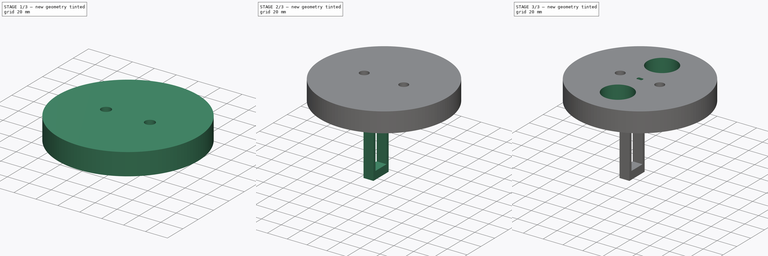
[diagram: build sequence overview — one tinted view per stage of 3, left to right]
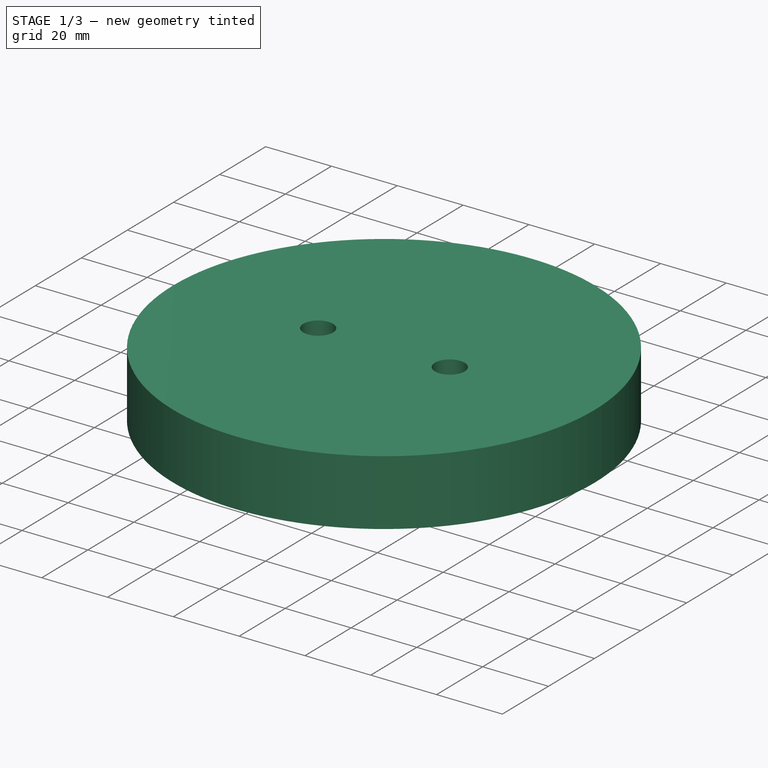
[diagram: stage 1 of 3 — iso view after this stage's code; geometry added in this stage tinted green]
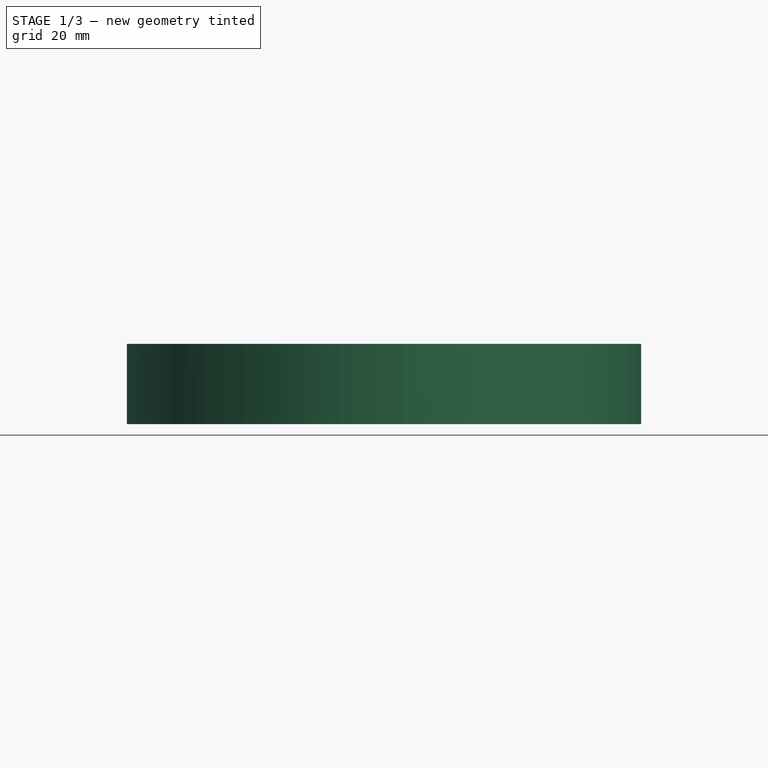
[diagram: stage 1 of 3 — front view after this stage's code; geometry added in this stage tinted green]
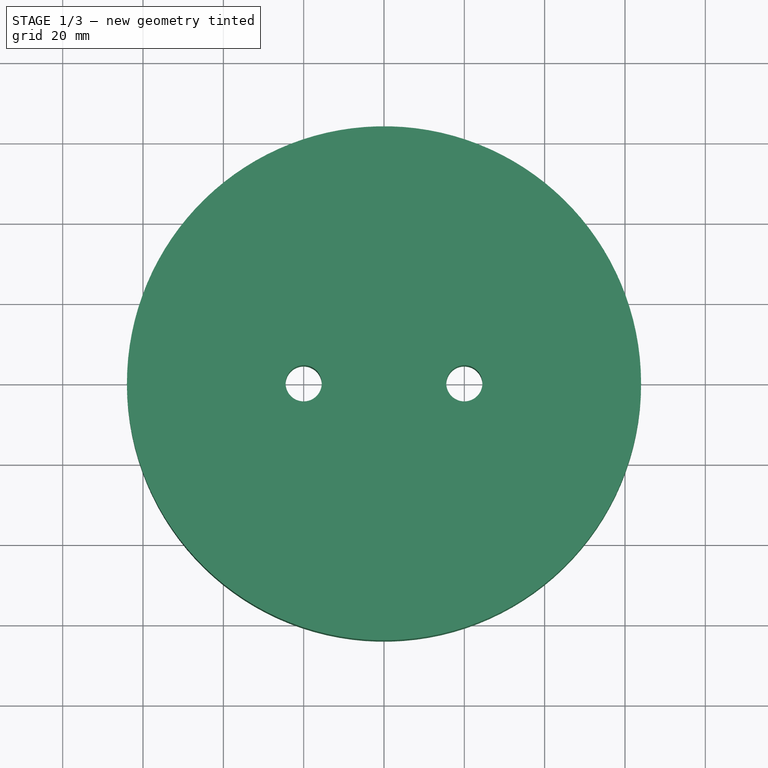
[diagram: stage 1 of 3 — top view after this stage's code; geometry added in this stage tinted green]
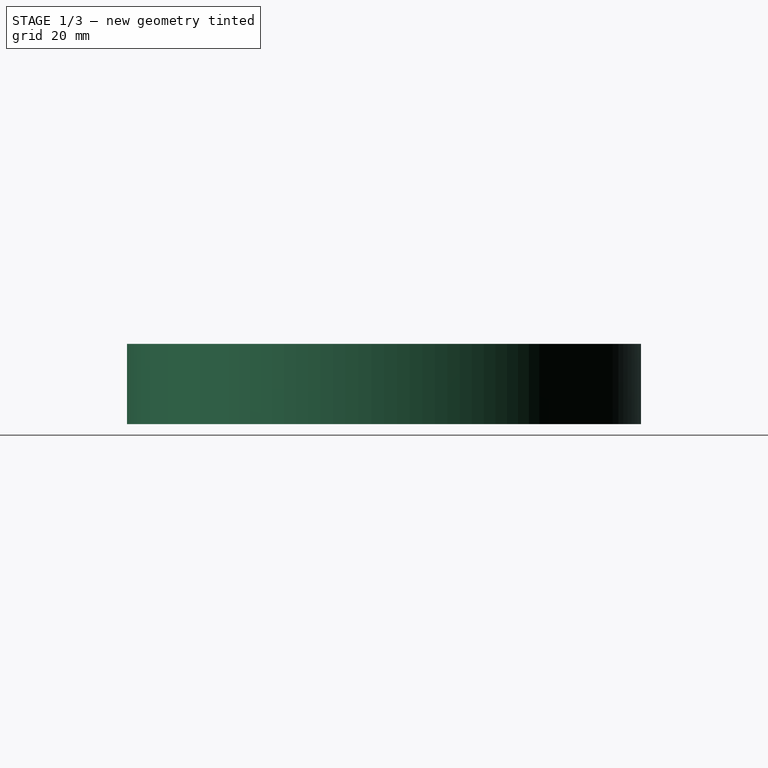
[diagram: stage 1 of 3 — right view after this stage's code; geometry added in this stage tinted green]
FCSTD DOCUMENT  (FreeCAD 0.19R24267 +148 (Git))
Label: Plataforma
License: All rights reserved
LicenseURL: http://en.wikipedia.org/wiki/All_rights_reserved
objects: Sketcher::SketchObject×10, PartDesign::Pocket×6, App::MeasureDistance×5, PartDesign::Pad×2, PartDesign::Body×1
note: 27 computed .brp shape members not serialized (recipe doc carries the construction recipe); baked Part::Feature solids carry a one-line shape summary decoded from their .brp

FEATURE [Sketcher::SketchObject] Sketch004  label="Base"
  FullyConstrained = false
  MapMode = 5
  Support = -> [XY_Plane001]
  sketch-geometry (4):
    g0: GeomPoint X=0 Y=44.0044 Z=0
    g1: GeomPoint X=0 Y=44.0044 Z=0
    g2: GeomPoint X=0 Y=64.0044 Z=0
    g3: Circle CenterX=0 CenterY=0 CenterZ=0 NormalX=0 NormalY=0 NormalZ=1 AngleXU=0 Radius=64.0044
  constraints (6):
    c: PointOnObject(g1,g-2)
    c: Coincident(g0,g1)
    c: PointOnObject(g2,g-2)
    c: Distance(g2,g0) = 20
    c: Coincident(g3,g-1)
    c: PointOnObject(g2,g3)
FEATURE [Sketcher::SketchObject] Sketch005  label="Gancho_izquierdo001"
  FullyConstrained = true
  MapMode = 5
  Support = -> [XY_Plane001]
  sketch-geometry (2):
    g0: GeomPoint X=-20 Y=0 Z=0
    g1: Circle CenterX=-20 CenterY=0 CenterZ=0 NormalX=0 NormalY=0 NormalZ=1 AngleXU=0 Radius=4.5
  constraints (4):
    c: PointOnObject(g0,g-1)
    c: Distance(g-1,g0) = 20
    c: Coincident(g1,g0)
    c: Radius(g1) = 4.5
FEATURE [Sketcher::SketchObject] Sketch006  label="Gancho_derecho001"
  FullyConstrained = true
  MapMode = 5
  Support = -> [XY_Plane001]
  sketch-geometry (2):
    g0: GeomPoint X=20 Y=0 Z=0
    g1: Circle CenterX=20 CenterY=0 CenterZ=0 NormalX=0 NormalY=0 NormalZ=1 AngleXU=0 Radius=4.5
  constraints (4):
    c: PointOnObject(g0,g-1)
    c: Distance(g-1,g0) = 20
    c: Coincident(g1,g0)
    c: Radius(g1) = 4.5
FEATURE [PartDesign::Pad] Pad
  Direction = (1,1,1)
  Length = 20
  Length2 = 100
  Profile = -> Sketch004
  Type = 0
FEATURE [PartDesign::Pocket] Pocket
  BaseFeature = -> Pad
  Length = 20
  Length2 = 100
  Profile = -> Sketch006
  Reversed = true
  Type = 0
FEATURE [PartDesign::Pocket] Pocket001
  BaseFeature = -> Pocket
  Length = 20
  Length2 = 100
  Profile = -> Sketch005
  Reversed = true
  Type = 0
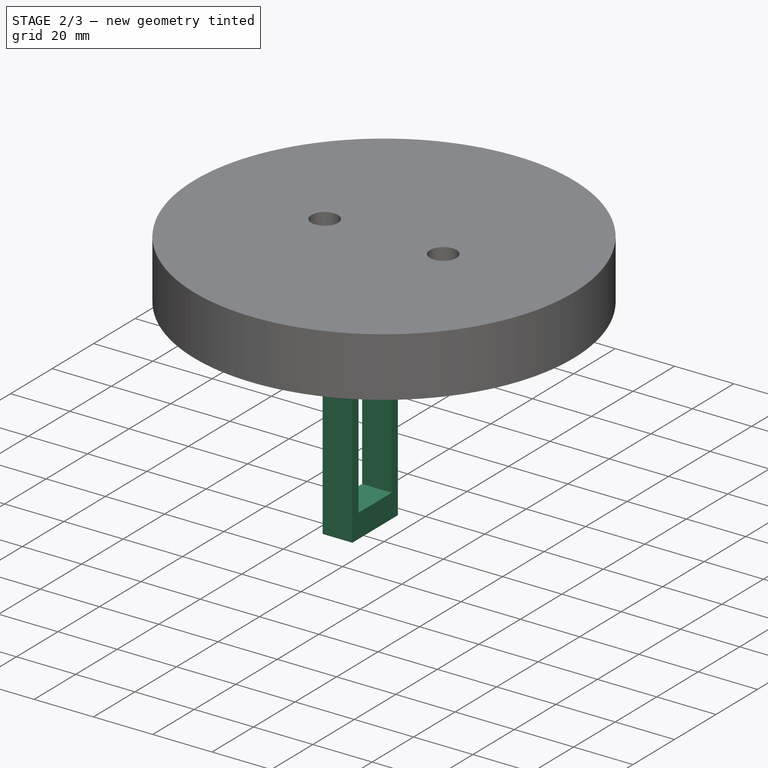
[diagram: stage 2 of 3 — iso view after this stage's code; geometry added in this stage tinted green]
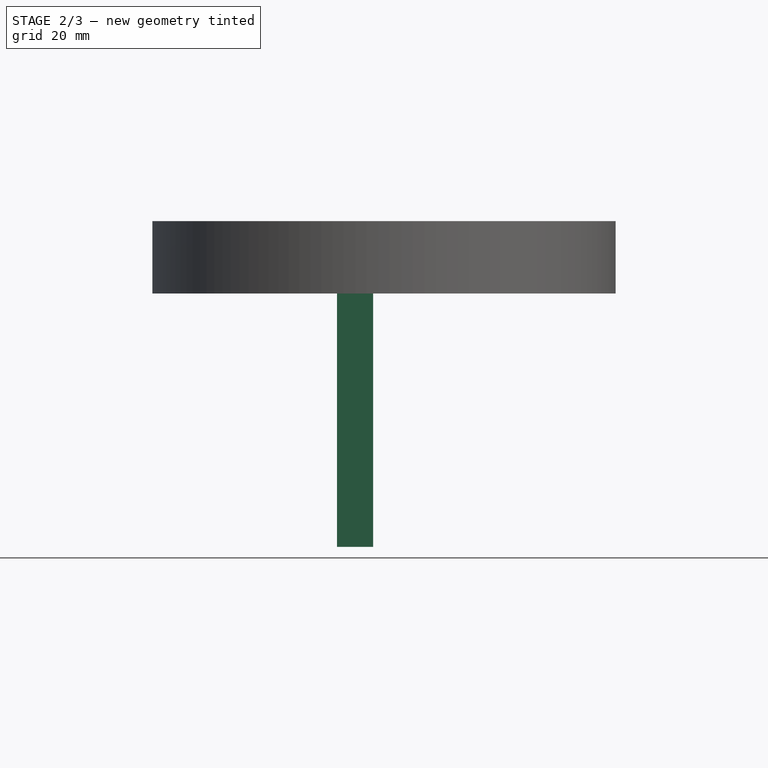
[diagram: stage 2 of 3 — front view after this stage's code; geometry added in this stage tinted green]
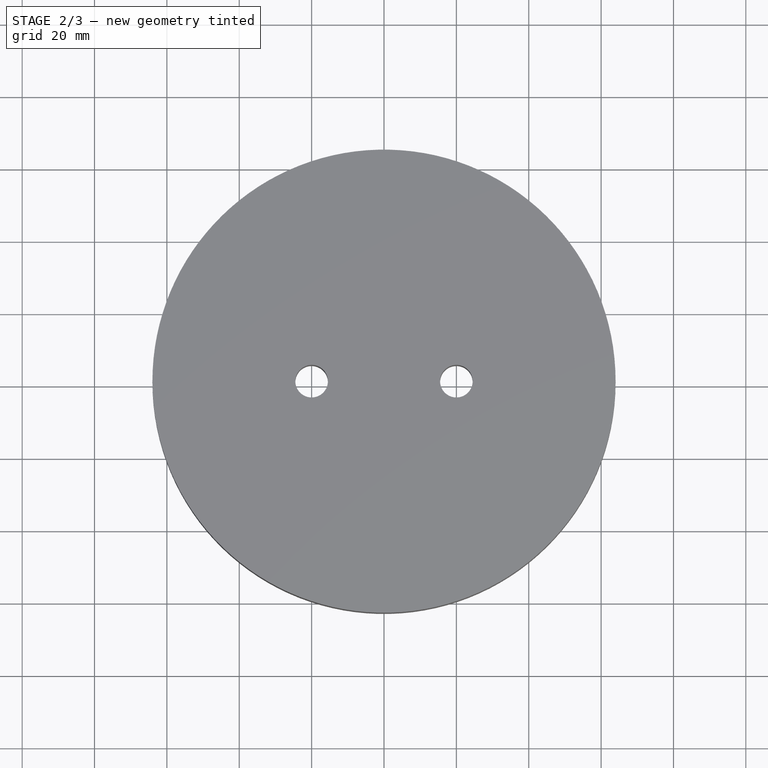
[diagram: stage 2 of 3 — top view after this stage's code; geometry added in this stage tinted green]
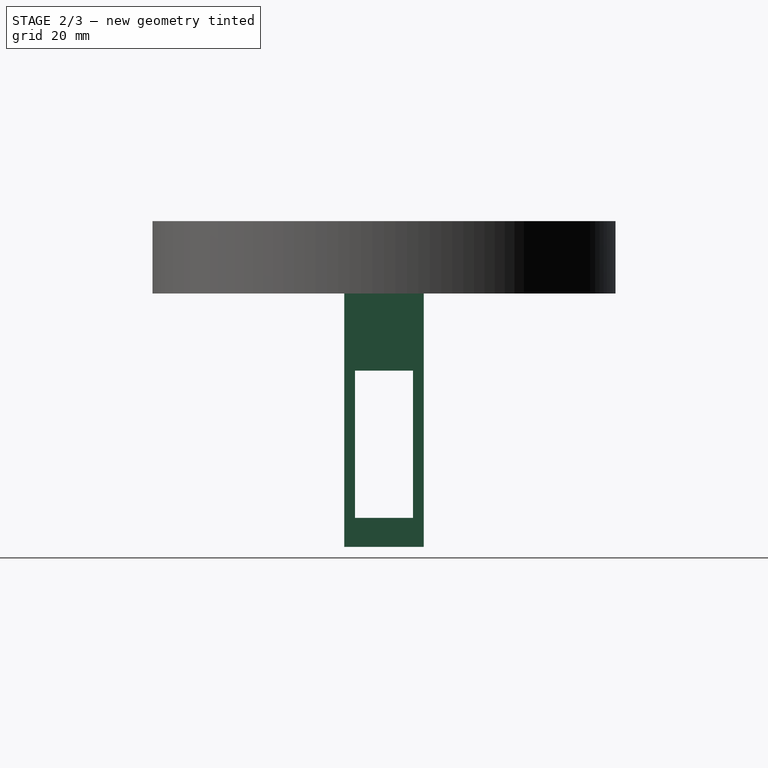
[diagram: stage 2 of 3 — right view after this stage's code; geometry added in this stage tinted green]
FEATURE [Sketcher::SketchObject] Sketch007
  FullyConstrained = true
  MapMode = 5
  Support = -> [XY_Plane001]
  sketch-geometry (5):
    g0: LineSegment StartX=-13 StartY=11 StartZ=0 EndX=-3 EndY=11 EndZ=0
    g1: LineSegment StartX=-3 StartY=11 StartZ=0 EndX=-3 EndY=-11 EndZ=0
    g2: LineSegment StartX=-3 StartY=-11 StartZ=0 EndX=-13 EndY=-11 EndZ=0
    g3: LineSegment StartX=-13 StartY=-11 StartZ=0 EndX=-13 EndY=11 EndZ=0
    g4: GeomPoint X=-8 Y=0 Z=0
  constraints (13):
    c: Coincident(g0,g1)
    c: Coincident(g1,g2)
    c: Coincident(g2,g3)
    c: Coincident(g3,g0)
    c: Horizontal(g0)
    c: Horizontal(g2)
    c: Vertical(g1)
    c: Vertical(g3)
    c: PointOnObject(g4,g-1)
    c: Distance(g-1,g4) = 8
    c: Symmetric(g1,g0,g4)
    c: Distance(g0) = 10
    c: Distance(g1) = 22
FEATURE [PartDesign::Pad] Pad001  label="Cuadro"
  BaseFeature = -> Pocket001
  Direction = (1,1,1)
  Length = 70
  Length2 = 100
  Profile = -> Sketch007
  Reversed = true
  Type = 0
FEATURE [App::MeasureDistance] Distance  label="Distance: 70.00 mm"
  Distance = 70.0001
  P1 = (-5.5,-11,-70)
  P2 = (-5.41572,-10.9969,-7.1e-15)
FEATURE [Sketcher::SketchObject] Sketch
  ExternalGeometry = -> [Pad001]
  FullyConstrained = false
  MapMode = 5
  Placement = pos=(-3,0,0) rot=(0.57735,0.57735,0.57735;2.0944rad)
  Support = -> [Pad001]
  sketch-geometry (13):
    g0: GeomPoint X=0 Y=-70 Z=0
    g1: GeomPoint X=0 Y=-70 Z=0
    g2: GeomPoint X=0 Y=-70 Z=0
    g3: GeomPoint X=8 Y=0 Z=0
    g4: GeomPoint X=-8 Y=0 Z=0
    g5: LineSegment StartX=8 StartY=-62 StartZ=0 EndX=8 EndY=-21.3 EndZ=0
    g6: LineSegment StartX=-8 StartY=-62 StartZ=0 EndX=-8 EndY=-21.3 EndZ=0
    g7: GeomPoint X=8 Y=-41.65 Z=0
    g8: GeomPoint X=-8 Y=-41.65 Z=0
    g9: LineSegment StartX=8 StartY=-62 StartZ=0 EndX=-8 EndY=-62 EndZ=0
    g10: LineSegment StartX=8 StartY=-21.3 StartZ=0 EndX=-8 EndY=-21.3 EndZ=0
    g11: GeomPoint X=0 Y=-62 Z=0
    g12: GeomPoint X=0 Y=-62 Z=0
  constraints (28):
    c: PointOnObject(g0,g-2)
    c: PointOnObject(g1,g-5)
    c: Coincident(g0,g1)
    c: Coincident(g2,g0)
    c: Distance(g3,g-3) = 3
    c: Distance(g4,g-4) = 3
    c: Vertical(g5)
    c: Distance(g-4) = 70
    c: Vertical(g6)
    c: Distance(g5) = 40.7
    c: Equal(g5,g6)
    c: PointOnObject(g7,g5)
    c: Distance(g7,g5) = 20.35
    c: Distance(g7,g5) = 20.35
    c: PointOnObject(g8,g6)
    c: Distance(g8,g6) = 20.35
    c: Coincident(g9,g5)
    c: Coincident(g9,g6)
    c: Horizontal(g9)
    c: Coincident(g10,g5)
    c: Coincident(g10,g6)
    c: Distance(g9) = 16
    c: PointOnObject(g11,g9)
    c: PointOnObject(g12,g-2)
    c: Coincident(g11,g12)
    c: Distance(g5,g11) = 8
    c: Distance(g11,g6) = 8
    c: Distance(g0,g11) = 8
FEATURE [App::MeasureDistance] Distance001  label="Distance: 5.00 mm"
  Distance = 5
  P1 = (-5.5,11,-70)
  P2 = (-10.5,11,-70)
FEATURE [PartDesign::Pocket] Pocket002  label="Orificio_servo"
  BaseFeature = -> Pad001
  Length = 10
  Length2 = 100
  Profile = -> Sketch
  Type = 0
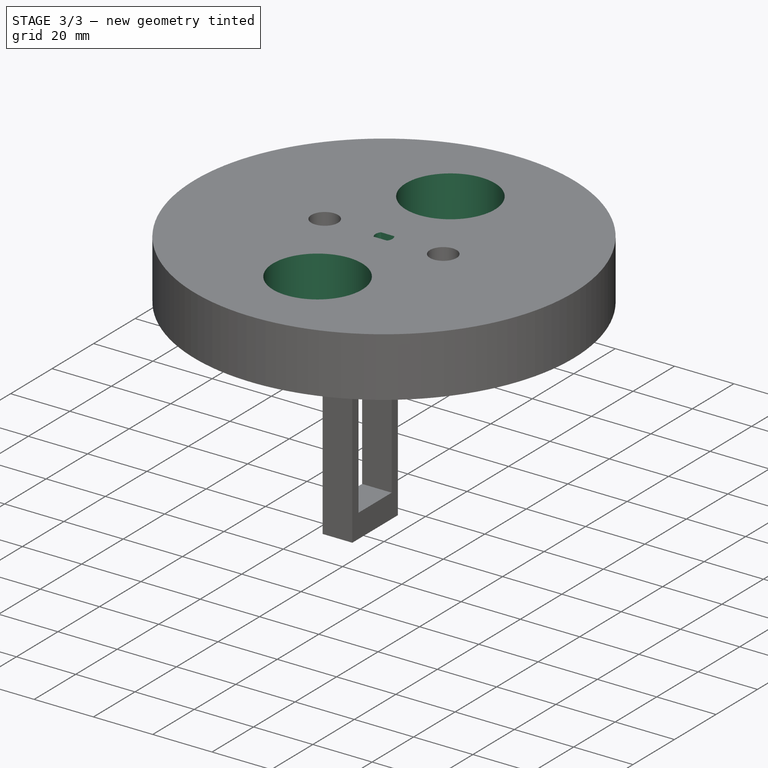
[diagram: stage 3 of 3 — iso view after this stage's code; geometry added in this stage tinted green]
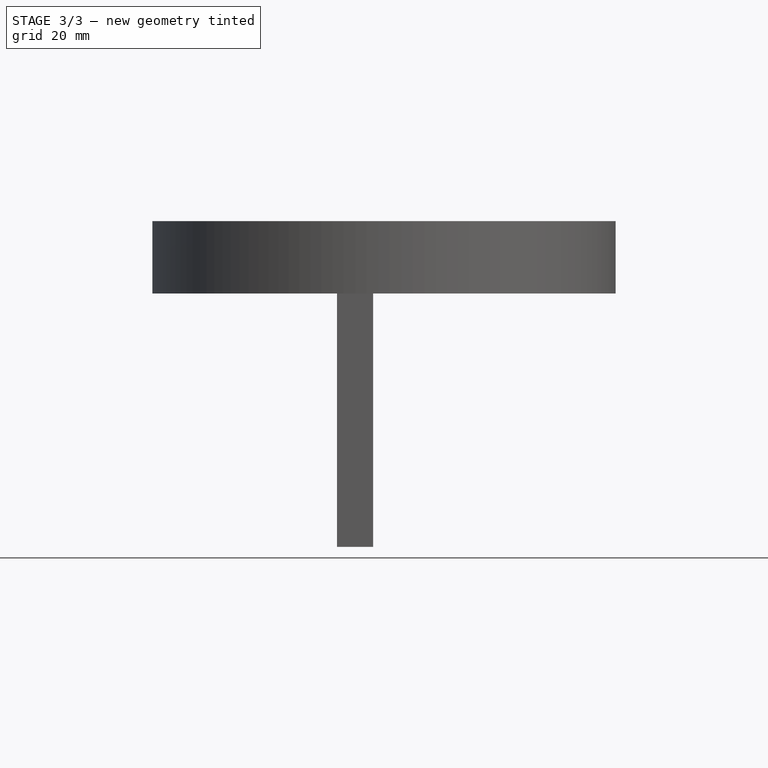
[diagram: stage 3 of 3 — front view after this stage's code; geometry added in this stage tinted green]
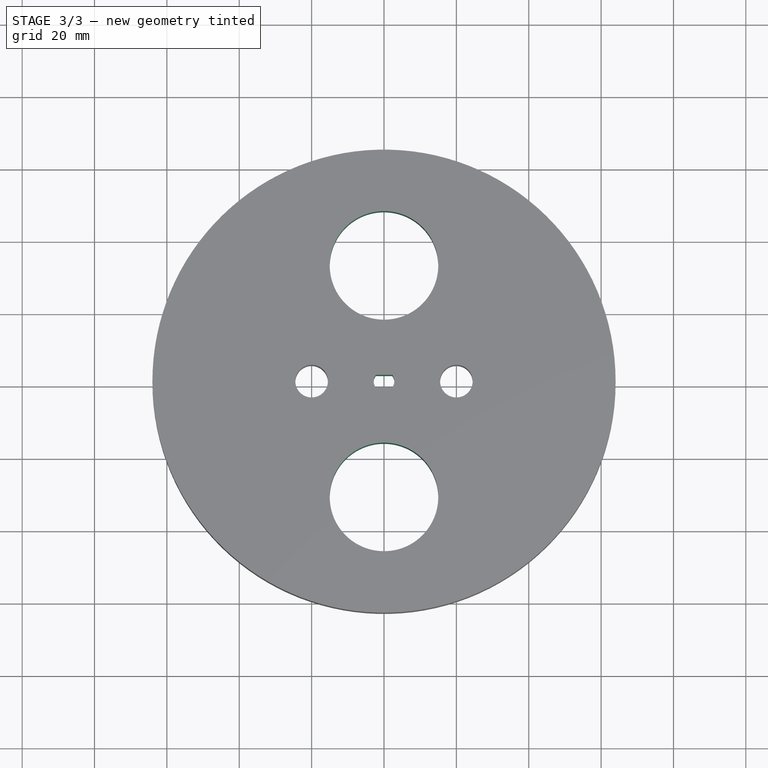
[diagram: stage 3 of 3 — top view after this stage's code; geometry added in this stage tinted green]
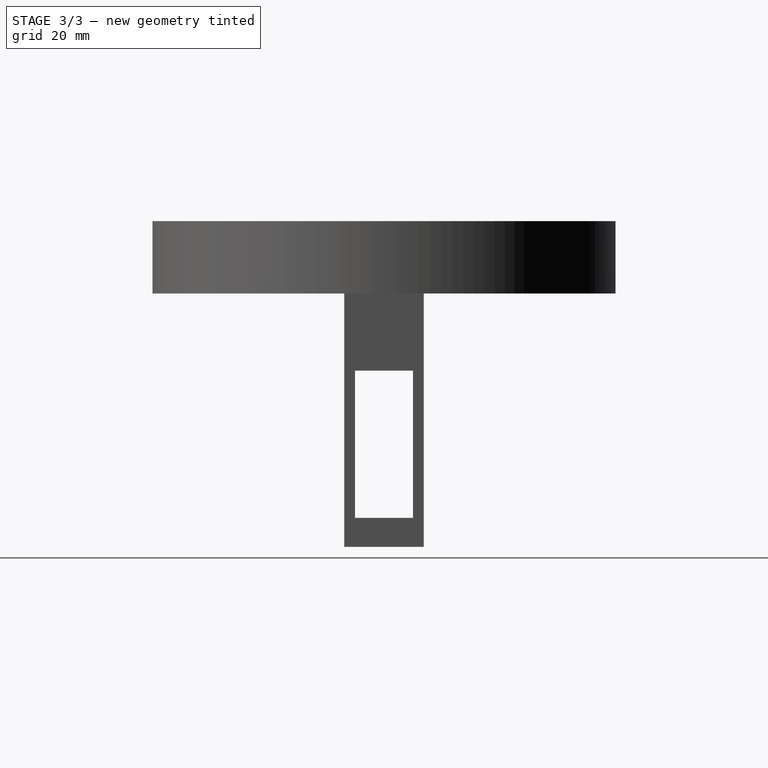
[diagram: stage 3 of 3 — right view after this stage's code; geometry added in this stage tinted green]
FEATURE [App::MeasureDistance] Distance002  label="Distance: 40.70 mm"
  Distance = 40.7
  P1 = (-5.5,-8,-21.3)
  P2 = (-5.5,-8,-62)
FEATURE [App::MeasureDistance] Distance003  label="Distance: 70.00 mm001"
  Distance = 69.9985
  P1 = (-5.5,-10.9703,-70)
  P2 = (-5.5,-10.9991,-0.00149)
FEATURE [Sketcher::SketchObject] Sketch001  label="Orificio"
  FullyConstrained = true
  MapMode = 5
  sketch-geometry (10):
    g0: LineSegment StartX=-2.25 StartY=1.75 StartZ=0 EndX=2.25 EndY=1.75 EndZ=0
    g1: LineSegment StartX=-2.25 StartY=-1.75 StartZ=0 EndX=2.25 EndY=-1.75 EndZ=0
    g2: GeomPoint X=0 Y=1.75 Z=0
    g3: GeomPoint X=0 Y=-1.75 Z=0
    g4: LineSegment StartX=0 StartY=1.75 StartZ=0 EndX=0 EndY=-1.75 EndZ=0
    g5: GeomPoint X=0 Y=1.75 Z=0
    g6: ArcOfCircle CenterX=0 CenterY=0 CenterZ=0 NormalX=0 NormalY=0 NormalZ=1 AngleXU=0 Radius=2.85044 StartAngle=2.48055 EndAngle=3.80264
    g7: ArcOfCircle CenterX=0 CenterY=0 CenterZ=0 NormalX=0 NormalY=0 NormalZ=1 AngleXU=0 Radius=2.85044 StartAngle=5.62214 EndAngle=6.94423
    g8: GeomPoint X=-2.85044 Y=0 Z=0
    g9: GeomPoint X=-2.85044 Y=0 Z=0
  constraints (26):
    c: Distance(g1,g0) = 3.5
    c: Symmetric(g0,g1,g-1)
    c: Equal(g1,g0)
    c: Symmetric(g0,g0,g-2)
    c: PointOnObject(g2,g0)
    c: Distance(g2,g0) = 2.25
    c: Distance(g2,g0) = 2.25
    c: PointOnObject(g3,g1)
    c: Distance(g3,g1) = 2.25
    c: Coincident(g4,g2)
    c: Coincident(g4,g3)
    c: Vertical(g4)
    c: Distance(g4) = 3.5
    c: Distance(g0) = 4.5
    c: PointOnObject(g5,g-2)
    c: Coincident(g2,g5)
    c: Coincident(g6,g-1)
    c: Coincident(g6,g0)
    c: Coincident(g6,g1)
    c: Coincident(g7,g6)
    c: Coincident(g7,g0)
    c: Coincident(g7,g1)
    c: PointOnObject(g8,g-1)
    c: PointOnObject(g9,g6)
    c: Coincident(g8,g9)
    c: Distance(g8,g6) = 2.85044
FEATURE [PartDesign::Pocket] Pocket003
  BaseFeature = -> Pocket002
  Length = 20
  Length2 = 100
  Profile = -> Sketch001
  Reversed = true
  Type = 0
FEATURE [Sketcher::SketchObject] Sketch008
  ExternalGeometry = -> [Pocket003]
  FullyConstrained = true
  MapMode = 5
  Support = -> [XY_Plane001]
  sketch-geometry (8):
    g0: GeomPoint X=0 Y=64.0044 Z=0
    g1: GeomPoint X=0 Y=64.0044 Z=0
    g2: GeomPoint X=0 Y=-64.0044 Z=0
    g3: GeomPoint X=0 Y=-64.0044 Z=0
    g4: GeomPoint X=0 Y=32 Z=0
    g5: GeomPoint X=0 Y=-32 Z=0
    g6: Circle CenterX=0 CenterY=32 CenterZ=0 NormalX=0 NormalY=0 NormalZ=1 AngleXU=0 Radius=15
    g7: Circle CenterX=0 CenterY=-32 CenterZ=0 NormalX=0 NormalY=0 NormalZ=1 AngleXU=0 Radius=15
  constraints (15):
    c: PointOnObject(g0,g-2)
    c: PointOnObject(g1,g-3)
    c: Coincident(g0,g1)
    c: PointOnObject(g2,g-2)
    c: PointOnObject(g3,g-3)
    c: Coincident(g2,g3)
    c: Distance(g2,g0) = 128.009
    c: PointOnObject(g4,g-2)
    c: Distance(g-1,g4) = 32
    c: PointOnObject(g5,g-2)
    c: Distance(g-1,g5) = 32
    c: Coincident(g6,g4)
    c: Coincident(g7,g5)
    c: Radius(g6) = 15
    c: Equal(g7,g6)
FEATURE [Sketcher::SketchObject] Sketch009
  FullyConstrained = true
  MapMode = 5
  Support = -> [XY_Plane001]
  sketch-geometry (5):
    g0: LineSegment StartX=-13 StartY=11 StartZ=0 EndX=-3 EndY=11 EndZ=0
    g1: LineSegment StartX=-3 StartY=11 StartZ=0 EndX=-3 EndY=-11 EndZ=0
    g2: LineSegment StartX=-3 StartY=-11 StartZ=0 EndX=-13 EndY=-11 EndZ=0
    g3: LineSegment StartX=-13 StartY=-11 StartZ=0 EndX=-13 EndY=11 EndZ=0
    g4: GeomPoint X=-8 Y=0 Z=0
  constraints (13):
    c: Coincident(g0,g1)
    c: Coincident(g1,g2)
    c: Coincident(g2,g3)
    c: Coincident(g3,g0)
    c: Horizontal(g0)
    c: Horizontal(g2)
    c: Vertical(g1)
    c: Vertical(g3)
    c: PointOnObject(g4,g-1)
    c: Distance(g-1,g4) = 8
    c: Symmetric(g1,g0,g4)
    c: Distance(g0) = 10
    c: Distance(g1) = 22
FEATURE [Sketcher::SketchObject] Sketch010
  FullyConstrained = true
  MapMode = 5
  Support = -> [XY_Plane001]
  sketch-geometry (5):
    g0: LineSegment StartX=-13 StartY=11 StartZ=0 EndX=-3 EndY=11 EndZ=0
    g1: LineSegment StartX=-3 StartY=11 StartZ=0 EndX=-3 EndY=-11 EndZ=0
    g2: LineSegment StartX=-3 StartY=-11 StartZ=0 EndX=-13 EndY=-11 EndZ=0
    g3: LineSegment StartX=-13 StartY=-11 StartZ=0 EndX=-13 EndY=11 EndZ=0
    g4: GeomPoint X=-8 Y=0 Z=0
  constraints (13):
    c: Coincident(g0,g1)
    c: Coincident(g1,g2)
    c: Coincident(g2,g3)
    c: Coincident(g3,g0)
    c: Horizontal(g0)
    c: Horizontal(g2)
    c: Vertical(g1)
    c: Vertical(g3)
    c: PointOnObject(g4,g-1)
    c: Distance(g-1,g4) = 8
    c: Symmetric(g1,g0,g4)
    c: Distance(g0) = 10
    c: Distance(g1) = 22
FEATURE [Sketcher::SketchObject] Sketch011
  ExternalGeometry = -> [Sketch008]
  FullyConstrained = false
  MapMode = 5
  Support = -> [XY_Plane001]
  sketch-geometry (2):
    g0: GeomPoint X=12.9822 Y=-24.4858 Z=0
    g1: Circle CenterX=0 CenterY=-32 CenterZ=0 NormalX=0 NormalY=0 NormalZ=1 AngleXU=0 Radius=15
  constraints (2):
    c: PointOnObject(g0,g1)
    c: Radius(g1) = 15
FEATURE [PartDesign::Pocket] Pocket004
  BaseFeature = -> Pocket003
  Length = 20
  Length2 = 100
  Profile = -> Sketch008
  Reversed = true
  Type = 0
FEATURE [PartDesign::Pocket] Pocket005
  BaseFeature = -> Pocket004
  Length = 20
  Length2 = 100
  Profile = -> Sketch011
  Reversed = true
  Type = 0
FEATURE [PartDesign::Body] Body001  label="Base001"
  Group = -> [Sketch004,Sketch005,Sketch006,Pad,Pocket,Pocket001,Sketch007,Pad001,Sketch,Pocket002,Sketch001,Pocket003,Sketch008,Sketch011,Pocket004,Pocket005]
  Origin = -> Origin001
  Tip = -> Pocket005
FEATURE [App::MeasureDistance] Distance004  label="Distance: 20.00 mm"
  Distance = 20
  P1 = (55.2603,-32.0017,0)
  P2 = (55.2609,-32.0005,20)
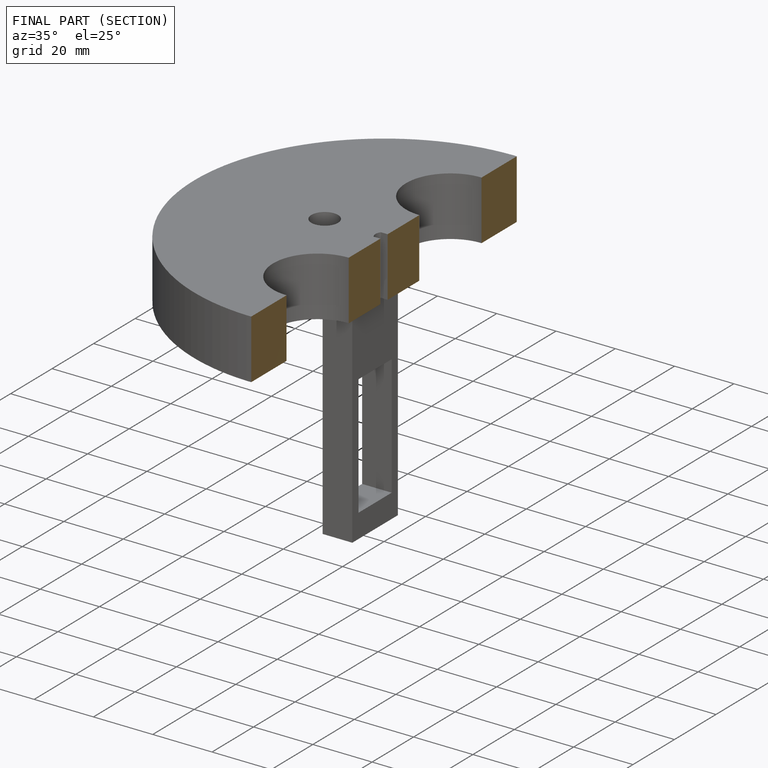
[diagram: finished part — half-section view (interior)]
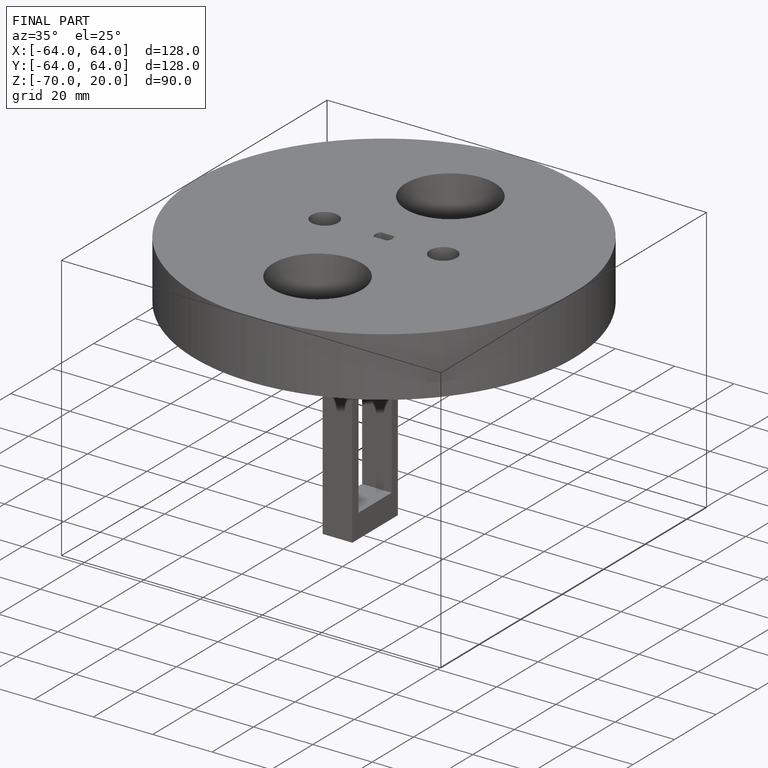
[diagram: finished part — iso view with bounding-box wireframe]
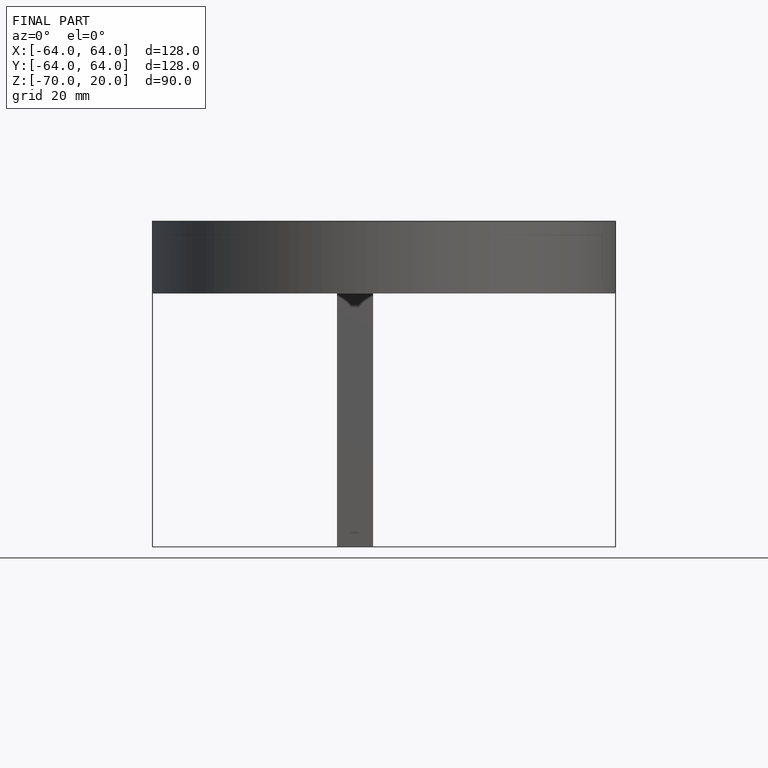
[diagram: finished part — front view with bounding-box wireframe]
